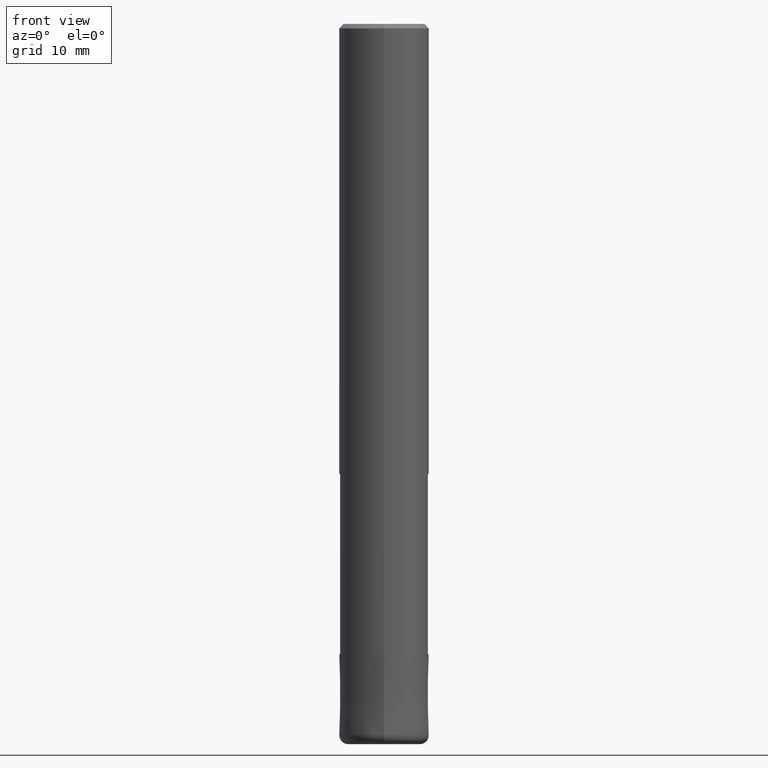
[diagram: clean part render]
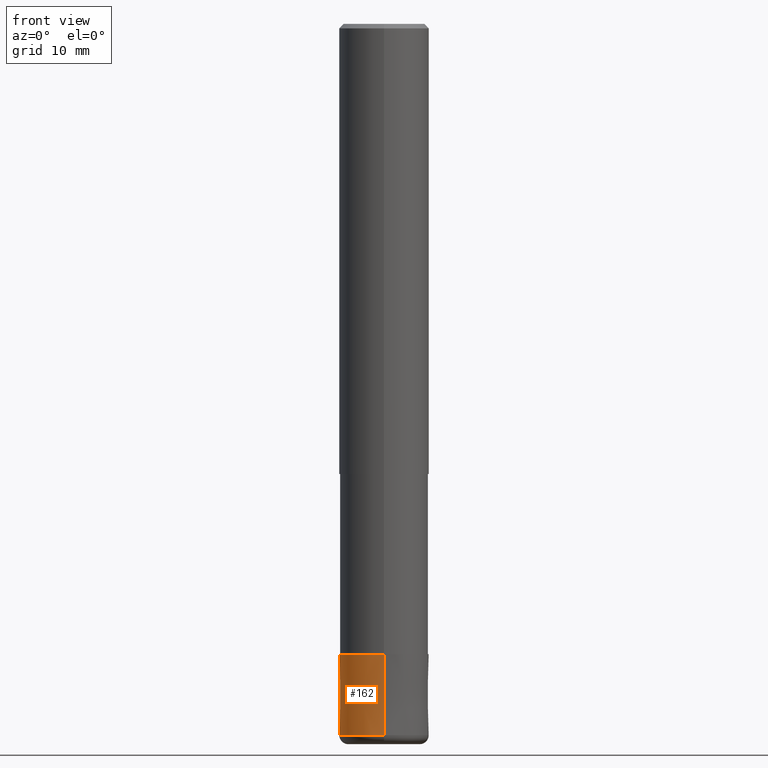
[diagram: same view with one face highlighted and labeled with its STEP entity id]
A machine part, front view. The second image highlights one B-rep face of the part: STEP entity #162.
In plain terms, the highlighted conical surface has half-angle 0.001 deg.
Its self-contained STEP definition (entity closure, byte-faithful):
#110=EDGE_CURVE('',#188,#184,#248,.T.);
#120=EDGE_CURVE('',#184,#174,#260,.T.);
#134=EDGE_CURVE('',#174,#186,#274,.T.);
#140=EDGE_CURVE('',#188,#186,#280,.T.);
#162=ADVANCED_FACE('',(#309),#310,.T.);
#174=VERTEX_POINT('',#324);
#184=VERTEX_POINT('',#335);
#186=VERTEX_POINT('',#337);
#188=VERTEX_POINT('',#339);
#248=LINE('',#399,#400);
#260=CIRCLE('',#414,4.9999);
#274=LINE('',#434,#435);
#280=CIRCLE('',#442,5.0);
#309=FACE_OUTER_BOUND('',#476,.T.);
#310=CONICAL_SURFACE('',#477,4.99995,1.1111111110628E-005);
#324=CARTESIAN_POINT('',(0.0,4.9999,-70.0));
#335=CARTESIAN_POINT('',(6.1229093084765E-016,-4.9999,-70.0));
#337=CARTESIAN_POINT('',(0.0,5.0,-79.0));
#339=CARTESIAN_POINT('',(6.12303176911189E-016,-5.0,-79.0));
#399=CARTESIAN_POINT('',(6.12297053879419E-016,-4.99995,-74.5));
#400=VECTOR('',#561,1.0);
#414=AXIS2_PLACEMENT_3D('',#579,#580,#581);
#434=CARTESIAN_POINT('',(-6.12297053879419E-016,4.99995,-74.5));
#435=VECTOR('',#597,1.0);
#442=AXIS2_PLACEMENT_3D('',#598,#599,#600);
#476=EDGE_LOOP('',(#653,#654,#655,#656));
#477=AXIS2_PLACEMENT_3D('',#657,#658,#659);
#561=DIRECTION('',(-1.36067372638214E-021,1.11111111103993E-005,0.999999999938272));
#579=CARTESIAN_POINT('',(0.0,0.0,-70.0));
#580=DIRECTION('',(0.0,0.0,-1.0));
#581=DIRECTION('',(0.0,1.0,0.0));
#597=DIRECTION('',(-1.36067372638214E-021,1.11111111103993E-005,-0.999999999938272));
#598=CARTESIAN_POINT('',(0.0,0.0,-79.0));
#599=DIRECTION('',(0.0,0.0,-1.0));
#600=DIRECTION('',(0.0,1.0,0.0));
#653=ORIENTED_EDGE('',*,*,#134,.T.);
#654=ORIENTED_EDGE('',*,*,#140,.F.);
#655=ORIENTED_EDGE('',*,*,#110,.T.);
#656=ORIENTED_EDGE('',*,*,#120,.T.);
#657=CARTESIAN_POINT('',(0.0,0.0,-74.5));
#658=DIRECTION('',(0.0,-0.0,-1.0));
#659=DIRECTION('',(0.0,1.0,0.0));